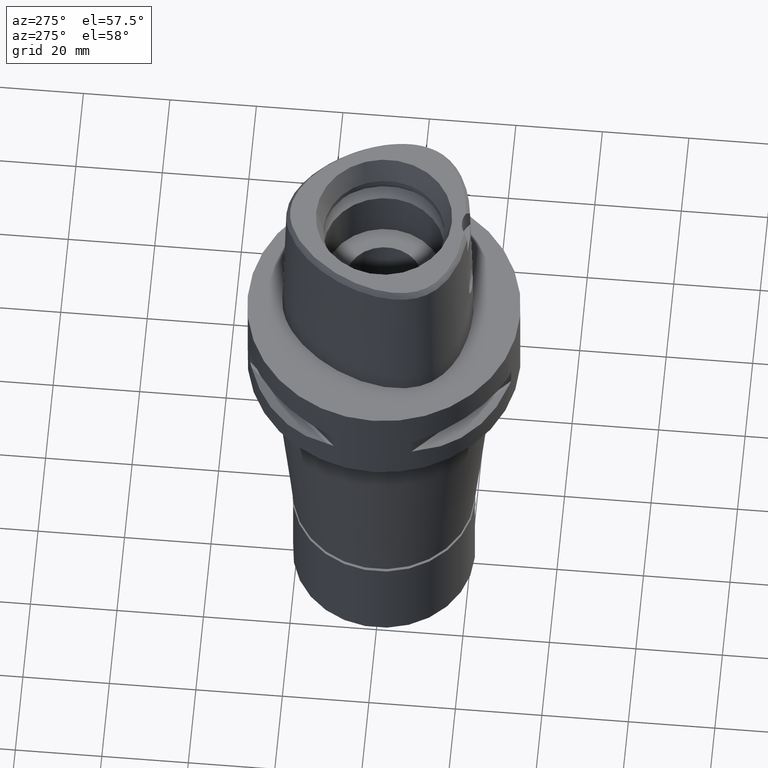
[diagram: clean part render]
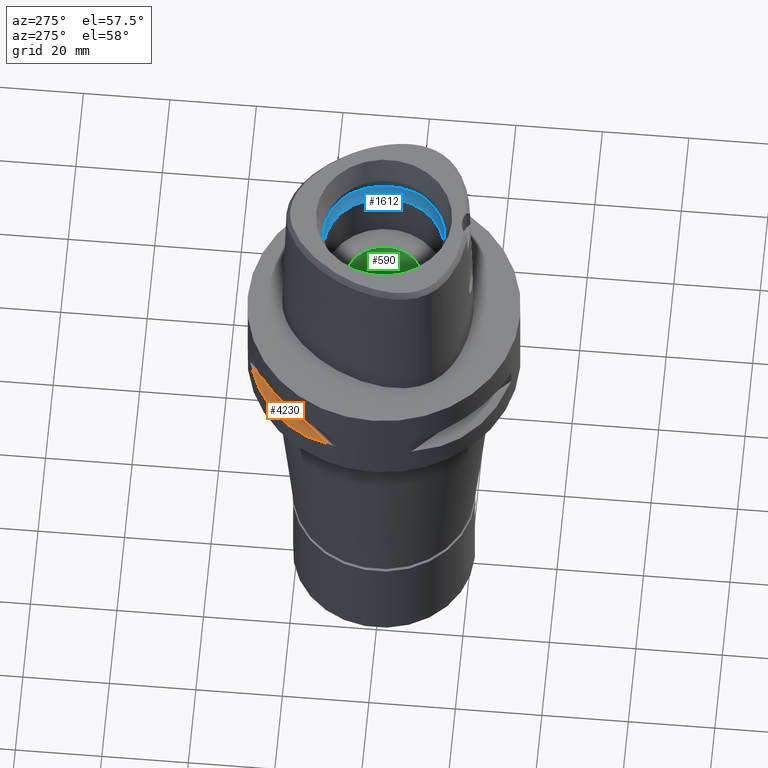
[diagram: same view with three faces highlighted in distinct colors, each labeled with its STEP entity id]
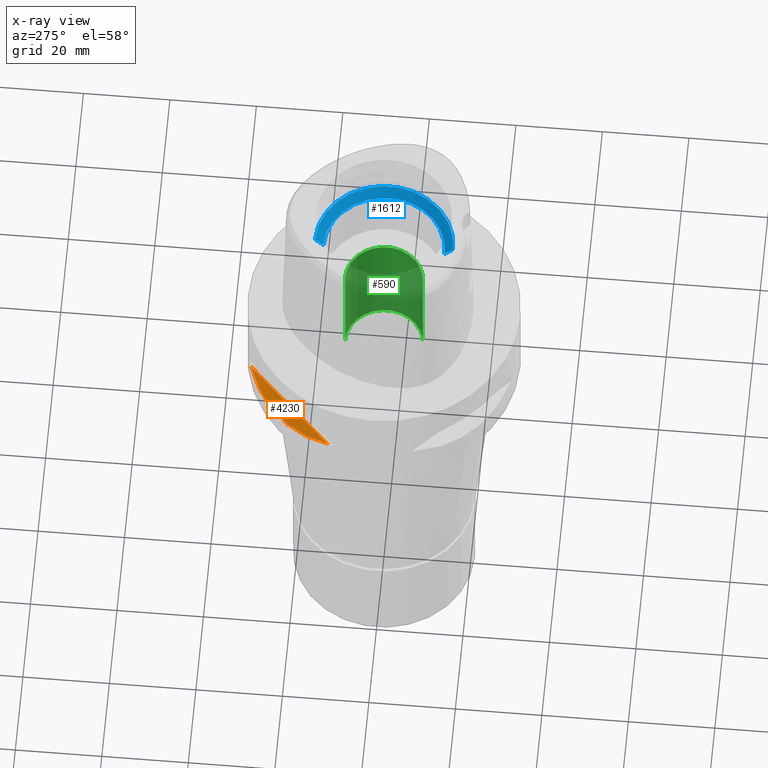
[diagram: x-ray of the same camera — body ghosted, the three highlighted faces saturated]
A machine part, auxiliary view with three faces highlighted in distinct colors.
The next image is the same camera in x-ray (body ghosted, the three faces saturated) — at least one of them is partly hidden behind the body in this view.
Their STEP definitions:

[orange] entity #4230 — the highlighted planar face has unit normal (0.3536, -0.3536, -0.866).
#18 = CARTESIAN_POINT ( 'NONE',  ( -25.43927894891607622, 18.59229662064853983, -15.62866126334269623 ) ) ;
#45 = CARTESIAN_POINT ( 'NONE',  ( -18.86897208073744991, 25.32725744467937545, -15.69588095933747240 ) ) ;
#362 = CARTESIAN_POINT ( 'NONE',  ( -26.48642424310458665, 17.05047092244234008, -15.42670883407647509 ) ) ;
#451 = B_SPLINE_CURVE_WITH_KNOTS ( 'NONE', 3,
 ( #3811, #1897, #4595, #3502, #1214, #750, #3451, #2350, #2655, #1137, #45, #3092, #3916, #2685, #18, #2324, #4212, #3836, #362, #3859, #1998, #2731, #1918, #1598 ),
 .UNSPECIFIED., .F., .F.,
 ( 4, 1, 1, 1, 1, 1, 2, 2, 2, 1, 1, 1, 1, 1, 2, 2, 4 ),
 ( 0.0000000000000000000, 0.1249999999999950040, 0.1874999999999924505, 0.2187499999999911737, 0.2343749999999902855, 0.2421874999999899802, 0.2460937499999900080, 0.2499999999999900080, 0.4999999999999917843, 0.6249999999999925615, 0.6874999999999925615, 0.7187499999999924505, 0.7343749999999926725, 0.7421874999999927836, 0.7460937499999928946, 0.7499999999999931166, 1.000000000000000000 ),
 .UNSPECIFIED. ) ;
#639 = VECTOR ( 'NONE', #2037, 1000.000000000000114 ) ;
#647 = FACE_OUTER_BOUND ( 'NONE', #4356, .T. ) ;
#750 = CARTESIAN_POINT ( 'NONE',  ( -16.48208282228564769, 26.84474411198887012, -15.34094883777873619 ) ) ;
#1060 = EDGE_CURVE ( 'NONE', #4025, #3064, #3569, .T. ) ;
#1137 = CARTESIAN_POINT ( 'NONE',  ( -16.89910283486545950, 26.58330558444438907, -15.40446471307224030 ) ) ;
#1209 = CARTESIAN_POINT ( 'NONE',  ( -10.44775724750000023, 29.71690375017999841, -14.05000000000000071 ) ) ;
#1214 = CARTESIAN_POINT ( 'NONE',  ( -16.03138450077636534, 27.11872488589498786, -15.26880420107476333 ) ) ;
#1465 = DIRECTION ( 'NONE',  ( 0.3535533905933054277, -0.3535533905933049836, -0.8660254037844130615 ) ) ;
#1598 = CARTESIAN_POINT ( 'NONE',  ( -29.71690375017999841, 10.44775724750000023, -14.05000000000000071 ) ) ;
#1897 = CARTESIAN_POINT ( 'NONE',  ( -11.58970337493613378, 29.31542262584994418, -14.35229357166721265 ) ) ;
#1918 = CARTESIAN_POINT ( 'NONE',  ( -28.91382665368626093, 12.73197616788979047, -14.65467361754097197 ) ) ;
#1998 = CARTESIAN_POINT ( 'NONE',  ( -26.54368690921649687, 16.96123479564916892, -15.41365572341313239 ) ) ;
#2037 = DIRECTION ( 'NONE',  ( -0.7071067811865474617, -0.7071067811865474617, 0.0000000000000000000 ) ) ;
#2155 = CARTESIAN_POINT ( 'NONE',  ( -29.71690375017999841, 10.44775724750000023, -14.05000000000000071 ) ) ;
#2324 = CARTESIAN_POINT ( 'NONE',  ( -26.01217882834653139, 17.76952662671834915, -15.52665221626015501 ) ) ;
#2350 = CARTESIAN_POINT ( 'NONE',  ( -16.80193241490443157, 26.64486562695815053, -15.38992683735661515 ) ) ;
#2655 = CARTESIAN_POINT ( 'NONE',  ( -16.86571563436579169, 26.60451452154777030, -15.39949295785988426 ) ) ;
#2685 = CARTESIAN_POINT ( 'NONE',  ( -24.23018836745279714, 20.18579225685798306, -15.78559396978850415 ) ) ;
#2731 = CARTESIAN_POINT ( 'NONE',  ( -27.86285265926284893, 14.89252659058025685, -15.10765629752004813 ) ) ;
#2971 = CARTESIAN_POINT ( 'NONE',  ( -34.22446612257000709, 5.940194875108000261, -14.05000000000000071 ) ) ;
#3064 = VERTEX_POINT ( 'NONE', #2155 ) ;
#3092 = CARTESIAN_POINT ( 'NONE',  ( -20.65093790435807364, 23.89673728056094859, -15.83935804902020550 ) ) ;
#3451 = CARTESIAN_POINT ( 'NONE',  ( -16.70616724745637072, 26.70521063584585164, -15.37546661817639126 ) ) ;
#3502 = CARTESIAN_POINT ( 'NONE',  ( -15.11986997308662595, 27.64634172018752523, -15.11207862403231239 ) ) ;
#3569 = LINE ( 'NONE', #4725, #639 ) ;
#3684 = PLANE ( 'NONE',  #4840 ) ;
#3704 = DIRECTION ( 'NONE',  ( 0.0000000000000000000, -0.9258200997725358761, 0.3779644730092654448 ) ) ;
#3762 = ORIENTED_EDGE ( 'NONE', *, *, #4512, .T. ) ;
#3811 = CARTESIAN_POINT ( 'NONE',  ( -10.44775724750000023, 29.71690375017999841, -14.05000000000000071 ) ) ;
#3836 = CARTESIAN_POINT ( 'NONE',  ( -26.42800887047508240, 17.14106442934706820, -15.43984550238465836 ) ) ;
#3859 = CARTESIAN_POINT ( 'NONE',  ( -26.52527364208584615, 16.98999780422065342, -15.41788098766309467 ) ) ;
#3916 = CARTESIAN_POINT ( 'NONE',  ( -23.08532645888017854, 21.46242677077873751, -15.83938991065184076 ) ) ;
#4025 = VERTEX_POINT ( 'NONE', #1209 ) ;
#4212 = CARTESIAN_POINT ( 'NONE',  ( -26.29071741523646111, 17.35163608579689409, -15.46976201925398087 ) ) ;
#4230 = ADVANCED_FACE ( 'NONE', ( #647 ), #3684, .F. ) ;
#4356 = EDGE_LOOP ( 'NONE', ( #4717, #3762 ) ) ;
#4512 = EDGE_CURVE ( 'NONE', #4025, #3064, #451, .T. ) ;
#4595 = CARTESIAN_POINT ( 'NONE',  ( -13.25636937902232404, 28.62019653469382163, -14.74888225540932751 ) ) ;
#4717 = ORIENTED_EDGE ( 'NONE', *, *, #1060, .F. ) ;
#4725 = CARTESIAN_POINT ( 'NONE',  ( -10.44775724750000023, 29.71690375017999841, -14.05000000000000071 ) ) ;
#4840 = AXIS2_PLACEMENT_3D ( 'NONE', #2971, #1465, #3704 ) ;

[blue] entity #1612 — the highlighted conical surface has half-angle 45 deg.
#33 = CIRCLE ( 'NONE', #683, 16.00000000000000000 ) ;
#73 = DIRECTION ( 'NONE',  ( 0.0000000000000000000, 1.000000000000000000, 0.0000000000000000000 ) ) ;
#187 = EDGE_CURVE ( 'NONE', #284, #1223, #4763, .T. ) ;
#232 = ORIENTED_EDGE ( 'NONE', *, *, #2460, .F. ) ;
#284 = VERTEX_POINT ( 'NONE', #4387 ) ;
#459 = CONICAL_SURFACE ( 'NONE', #3294, 15.00000000000000000, 0.7853981633972997312 ) ;
#600 = CARTESIAN_POINT ( 'NONE',  ( 0.0000000000000000000, -14.00000000000000000, 24.19999999999999929 ) ) ;
#683 = AXIS2_PLACEMENT_3D ( 'NONE', #889, #1704, #73 ) ;
#726 = VECTOR ( 'NONE', #2159, 1000.000000000000114 ) ;
#889 = CARTESIAN_POINT ( 'NONE',  ( 0.0000000000000000000, 0.0000000000000000000, 26.20000000000000284 ) ) ;
#947 = ORIENTED_EDGE ( 'NONE', *, *, #2604, .F. ) ;
#960 = CARTESIAN_POINT ( 'NONE',  ( 0.0000000000000000000, 14.00000000000000000, 24.19999999999999929 ) ) ;
#1018 = AXIS2_PLACEMENT_3D ( 'NONE', #4117, #3382, #3338 ) ;
#1223 = VERTEX_POINT ( 'NONE', #3293 ) ;
#1369 = ORIENTED_EDGE ( 'NONE', *, *, #4694, .T. ) ;
#1418 = VERTEX_POINT ( 'NONE', #1647 ) ;
#1444 = VECTOR ( 'NONE', #1742, 1000.000000000000114 ) ;
#1511 = CARTESIAN_POINT ( 'NONE',  ( 0.0000000000000000000, 0.0000000000000000000, 25.19999999999999929 ) ) ;
#1576 = CIRCLE ( 'NONE', #1018, 14.00000000000000000 ) ;
#1612 = ADVANCED_FACE ( 'NONE', ( #2993 ), #459, .F. ) ;
#1647 = CARTESIAN_POINT ( 'NONE',  ( 0.0000000000000000000, -14.00000000000000000, 24.19999999999999929 ) ) ;
#1704 = DIRECTION ( 'NONE',  ( 0.0000000000000000000, 0.0000000000000000000, -1.000000000000000000 ) ) ;
#1742 = DIRECTION ( 'NONE',  ( 0.0000000000000000000, 0.7071067811865474617, 0.7071067811865474617 ) ) ;
#1908 = DIRECTION ( 'NONE',  ( 0.0000000000000000000, 1.000000000000000000, 0.0000000000000000000 ) ) ;
#1941 = CARTESIAN_POINT ( 'NONE',  ( 0.0000000000000000000, -16.00000000000000000, 26.20000000000000284 ) ) ;
#2159 = DIRECTION ( 'NONE',  ( 0.0000000000000000000, -0.7071067811865474617, 0.7071067811865474617 ) ) ;
#2242 = DIRECTION ( 'NONE',  ( 0.0000000000000000000, 0.0000000000000000000, 1.000000000000000000 ) ) ;
#2460 = EDGE_CURVE ( 'NONE', #1223, #3948, #33, .T. ) ;
#2604 = EDGE_CURVE ( 'NONE', #1418, #284, #1576, .T. ) ;
#2993 = FACE_OUTER_BOUND ( 'NONE', #4247, .T. ) ;
#3293 = CARTESIAN_POINT ( 'NONE',  ( 0.0000000000000000000, 16.00000000000000000, 26.20000000000000284 ) ) ;
#3294 = AXIS2_PLACEMENT_3D ( 'NONE', #1511, #2242, #1908 ) ;
#3306 = LINE ( 'NONE', #600, #726 ) ;
#3338 = DIRECTION ( 'NONE',  ( 0.0000000000000000000, -1.000000000000000000, 0.0000000000000000000 ) ) ;
#3382 = DIRECTION ( 'NONE',  ( 0.0000000000000000000, 0.0000000000000000000, 1.000000000000000000 ) ) ;
#3579 = ORIENTED_EDGE ( 'NONE', *, *, #187, .F. ) ;
#3948 = VERTEX_POINT ( 'NONE', #1941 ) ;
#4117 = CARTESIAN_POINT ( 'NONE',  ( 0.0000000000000000000, 0.0000000000000000000, 24.19999999999999929 ) ) ;
#4247 = EDGE_LOOP ( 'NONE', ( #232, #3579, #947, #1369 ) ) ;
#4387 = CARTESIAN_POINT ( 'NONE',  ( 0.0000000000000000000, 14.00000000000000000, 24.19999999999999929 ) ) ;
#4694 = EDGE_CURVE ( 'NONE', #1418, #3948, #3306, .T. ) ;
#4763 = LINE ( 'NONE', #960, #1444 ) ;

[green] entity #590 — the highlighted cylindrical surface (partial cylindrical patch) has radius 9 mm, axis along (0, 0, -1).
#275 = DIRECTION ( 'NONE',  ( 0.0000000000000000000, -1.000000000000000000, 0.0000000000000000000 ) ) ;
#385 = LINE ( 'NONE', #3410, #3135 ) ;
#590 = ADVANCED_FACE ( 'NONE', ( #2374 ), #1971, .F. ) ;
#922 = VERTEX_POINT ( 'NONE', #4198 ) ;
#1237 = CARTESIAN_POINT ( 'NONE',  ( 0.0000000000000000000, 0.0000000000000000000, 39.89999999999999858 ) ) ;
#1242 = VERTEX_POINT ( 'NONE', #1325 ) ;
#1325 = CARTESIAN_POINT ( 'NONE',  ( 0.0000000000000000000, -9.000000000000000000, 11.00000000000000000 ) ) ;
#1645 = CARTESIAN_POINT ( 'NONE',  ( 0.0000000000000000000, 0.0000000000000000000, -16.00000000000000000 ) ) ;
#1668 = VECTOR ( 'NONE', #1781, 1000.000000000000000 ) ;
#1781 = DIRECTION ( 'NONE',  ( 0.0000000000000000000, 0.0000000000000000000, -1.000000000000000000 ) ) ;
#1971 = CYLINDRICAL_SURFACE ( 'NONE', #4593, 9.000000000000000000 ) ;
#2091 = VERTEX_POINT ( 'NONE', #2123 ) ;
#2123 = CARTESIAN_POINT ( 'NONE',  ( 0.0000000000000000000, 9.000000000000000000, -16.00000000000000000 ) ) ;
#2160 = AXIS2_PLACEMENT_3D ( 'NONE', #3789, #4916, #275 ) ;
#2279 = CARTESIAN_POINT ( 'NONE',  ( 0.0000000000000000000, 9.000000000000000000, 11.00000000000000000 ) ) ;
#2374 = FACE_OUTER_BOUND ( 'NONE', #4423, .T. ) ;
#2405 = DIRECTION ( 'NONE',  ( 0.0000000000000000000, 0.0000000000000000000, -1.000000000000000000 ) ) ;
#2432 = DIRECTION ( 'NONE',  ( 0.0000000000000000000, 1.000000000000000000, 0.0000000000000000000 ) ) ;
#2433 = DIRECTION ( 'NONE',  ( 0.0000000000000000000, -1.000000000000000000, 0.0000000000000000000 ) ) ;
#2671 = CIRCLE ( 'NONE', #3317, 9.000000000000000000 ) ;
#2876 = DIRECTION ( 'NONE',  ( 0.0000000000000000000, 0.0000000000000000000, -1.000000000000000000 ) ) ;
#3135 = VECTOR ( 'NONE', #3832, 1000.000000000000000 ) ;
#3150 = ORIENTED_EDGE ( 'NONE', *, *, #3880, .F. ) ;
#3246 = EDGE_CURVE ( 'NONE', #1242, #4499, #3360, .T. ) ;
#3279 = EDGE_CURVE ( 'NONE', #1242, #922, #4850, .T. ) ;
#3317 = AXIS2_PLACEMENT_3D ( 'NONE', #1645, #2876, #2432 ) ;
#3360 = CIRCLE ( 'NONE', #2160, 9.000000000000000000 ) ;
#3410 = CARTESIAN_POINT ( 'NONE',  ( 0.0000000000000000000, 9.000000000000000000, -16.00000000000000000 ) ) ;
#3534 = ORIENTED_EDGE ( 'NONE', *, *, #3279, .F. ) ;
#3789 = CARTESIAN_POINT ( 'NONE',  ( 0.0000000000000000000, 0.0000000000000000000, 11.00000000000000000 ) ) ;
#3832 = DIRECTION ( 'NONE',  ( 0.0000000000000000000, 0.0000000000000000000, 1.000000000000000000 ) ) ;
#3880 = EDGE_CURVE ( 'NONE', #2091, #4499, #385, .T. ) ;
#4080 = EDGE_CURVE ( 'NONE', #2091, #922, #2671, .T. ) ;
#4198 = CARTESIAN_POINT ( 'NONE',  ( 0.0000000000000000000, -9.000000000000000000, -16.00000000000000000 ) ) ;
#4422 = ORIENTED_EDGE ( 'NONE', *, *, #4080, .T. ) ;
#4423 = EDGE_LOOP ( 'NONE', ( #4727, #3150, #4422, #3534 ) ) ;
#4499 = VERTEX_POINT ( 'NONE', #2279 ) ;
#4501 = CARTESIAN_POINT ( 'NONE',  ( 0.0000000000000000000, -9.000000000000000000, 11.00000000000000000 ) ) ;
#4593 = AXIS2_PLACEMENT_3D ( 'NONE', #1237, #2405, #2433 ) ;
#4727 = ORIENTED_EDGE ( 'NONE', *, *, #3246, .T. ) ;
#4850 = LINE ( 'NONE', #4501, #1668 ) ;
#4916 = DIRECTION ( 'NONE',  ( 0.0000000000000000000, 0.0000000000000000000, 1.000000000000000000 ) ) ;